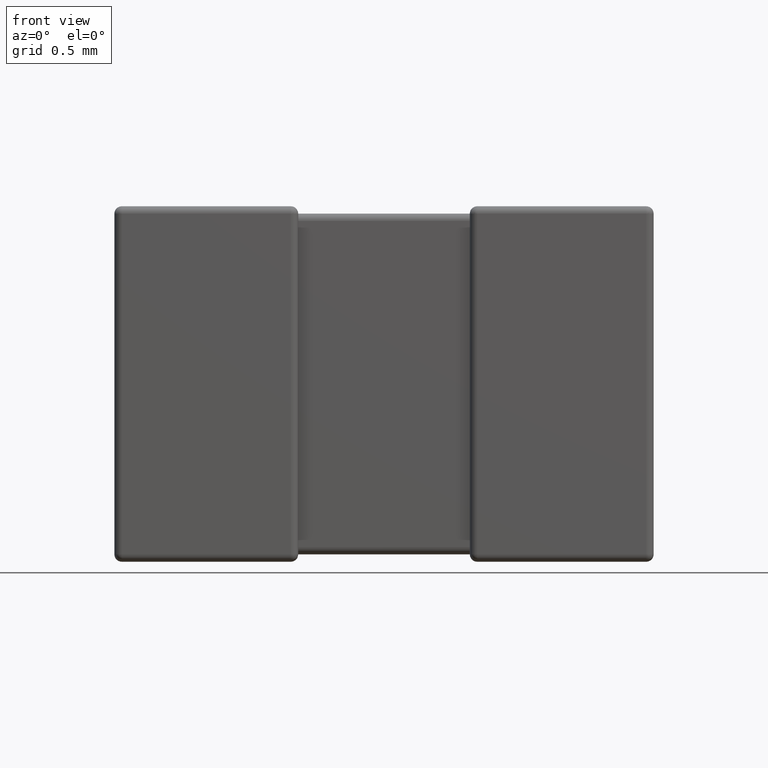
[diagram: clean part render]
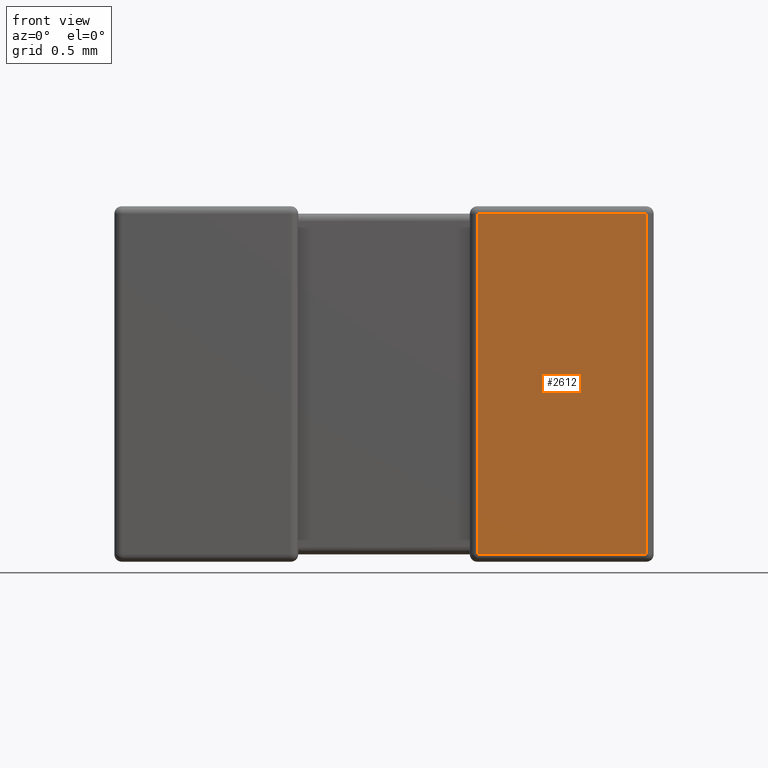
[diagram: same view with one face highlighted and labeled with its STEP entity id]
A machine part, front view. The second image highlights one B-rep face of the part: STEP entity #2612.
In plain terms, the highlighted planar face has unit normal (-0, 1, 0).
Its self-contained STEP definition (entity closure, byte-faithful):
#3 = CARTESIAN_POINT ( 'NONE',  ( 2.200000000000000178, 0.000000000000000000, -0.03015999999999999931 ) ) ;
#41 = DIRECTION ( 'NONE',  ( 1.000000000000000000, 0.000000000000000000, -0.000000000000000000 ) ) ;
#62 = EDGE_CURVE ( 'NONE', #3474, #2289, #2722, .T. ) ;
#155 = ORIENTED_EDGE ( 'NONE', *, *, #378, .T. ) ;
#246 = VERTEX_POINT ( 'NONE', #4111 ) ;
#378 = EDGE_CURVE ( 'NONE', #2289, #246, #4252, .T. ) ;
#502 = DIRECTION ( 'NONE',  ( -0.000000000000000000, 1.000000000000000000, 0.000000000000000000 ) ) ;
#566 = CARTESIAN_POINT ( 'NONE',  ( 2.169840000000000213, 0.000000000000000000, -1.419839999999999991 ) ) ;
#579 = AXIS2_PLACEMENT_3D ( 'NONE', #3654, #502, #1918 ) ;
#624 = DIRECTION ( 'NONE',  ( 0.000000000000000000, 0.000000000000000000, -1.000000000000000000 ) ) ;
#764 = VECTOR ( 'NONE', #41, 1000.000000000000000 ) ;
#813 = EDGE_CURVE ( 'NONE', #1042, #3474, #2845, .T. ) ;
#1042 = VERTEX_POINT ( 'NONE', #1178 ) ;
#1135 = EDGE_CURVE ( 'NONE', #246, #1042, #3350, .T. ) ;
#1178 = CARTESIAN_POINT ( 'NONE',  ( 1.480160000000000142, 0.000000000000000000, -1.419839999999999991 ) ) ;
#1918 = DIRECTION ( 'NONE',  ( 0.000000000000000000, -0.000000000000000000, 1.000000000000000000 ) ) ;
#2007 = EDGE_LOOP ( 'NONE', ( #155, #4234, #4351, #3401 ) ) ;
#2273 = PLANE ( 'NONE',  #579 ) ;
#2289 = VERTEX_POINT ( 'NONE', #3847 ) ;
#2612 = ADVANCED_FACE ( 'NONE', ( #4282 ), #2273, .F. ) ;
#2722 = LINE ( 'NONE', #3773, #4264 ) ;
#2807 = VECTOR ( 'NONE', #624, 1000.000000000000000 ) ;
#2845 = LINE ( 'NONE', #4243, #764 ) ;
#3350 = LINE ( 'NONE', #4438, #2807 ) ;
#3401 = ORIENTED_EDGE ( 'NONE', *, *, #62, .T. ) ;
#3474 = VERTEX_POINT ( 'NONE', #566 ) ;
#3615 = VECTOR ( 'NONE', #4228, 1000.000000000000000 ) ;
#3654 = CARTESIAN_POINT ( 'NONE',  ( 2.200000000000000178, 0.000000000000000000, 0.000000000000000000 ) ) ;
#3773 = CARTESIAN_POINT ( 'NONE',  ( 2.169840000000000213, 0.000000000000000000, 0.000000000000000000 ) ) ;
#3847 = CARTESIAN_POINT ( 'NONE',  ( 2.169840000000000213, 0.000000000000000000, -0.03015999999999999931 ) ) ;
#4111 = CARTESIAN_POINT ( 'NONE',  ( 1.480160000000000142, 0.000000000000000000, -0.03015999999999999931 ) ) ;
#4191 = DIRECTION ( 'NONE',  ( -0.000000000000000000, -0.000000000000000000, 1.000000000000000000 ) ) ;
#4228 = DIRECTION ( 'NONE',  ( -1.000000000000000000, 0.000000000000000000, 0.000000000000000000 ) ) ;
#4234 = ORIENTED_EDGE ( 'NONE', *, *, #1135, .T. ) ;
#4243 = CARTESIAN_POINT ( 'NONE',  ( 2.200000000000000178, 0.000000000000000000, -1.419839999999999991 ) ) ;
#4252 = LINE ( 'NONE', #3, #3615 ) ;
#4264 = VECTOR ( 'NONE', #4191, 1000.000000000000000 ) ;
#4282 = FACE_OUTER_BOUND ( 'NONE', #2007, .T. ) ;
#4351 = ORIENTED_EDGE ( 'NONE', *, *, #813, .T. ) ;
#4438 = CARTESIAN_POINT ( 'NONE',  ( 1.480160000000000142, 0.000000000000000000, 0.000000000000000000 ) ) ;